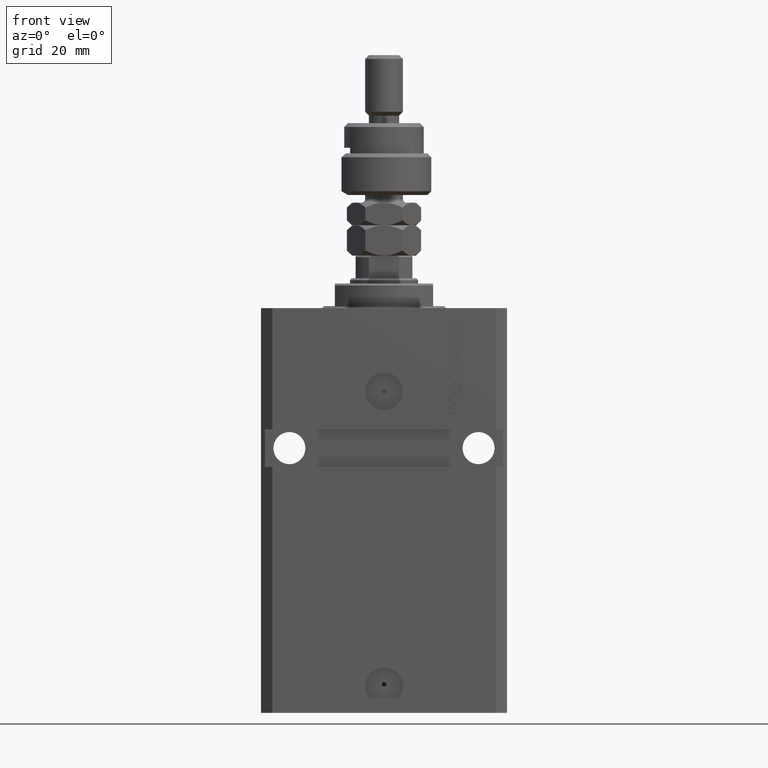
[diagram: clean part render]
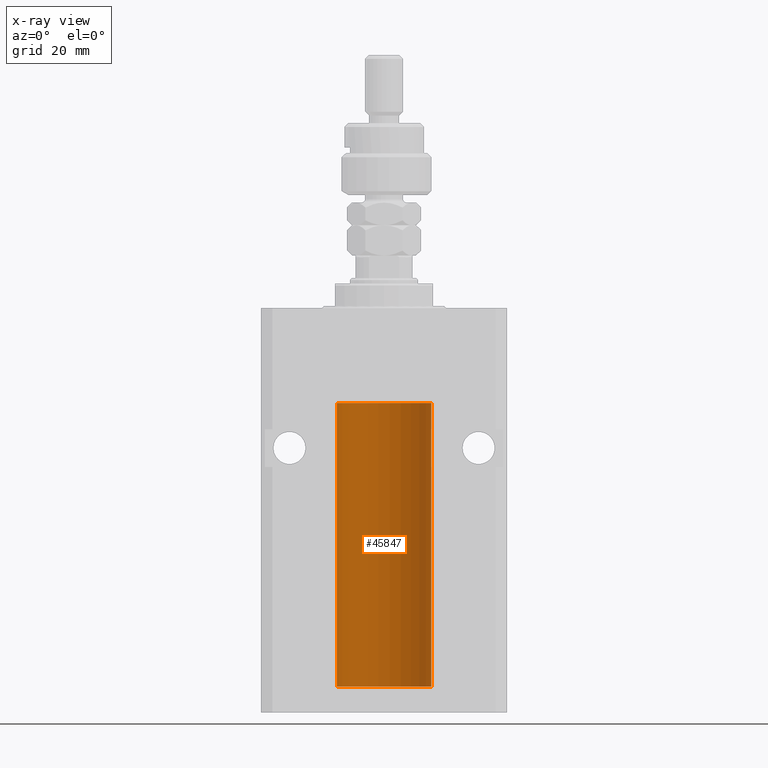
[diagram: x-ray — body ghosted, one internal face saturated and labeled with its STEP entity id]
A machine part, front view, then the same camera in x-ray: the body is ghosted and one INTERNAL B-rep face — a face not visible from any outside direction — is saturated and labeled: STEP entity #45847.
In plain terms, the highlighted cylindrical surface (partial cylindrical patch) has radius 12.5 mm, axis along (0, 0, 1).
Its self-contained STEP definition (entity closure, byte-faithful):
#434 = DIRECTION ( 'NONE',  ( 1.000000000000000000, 0.000000000000000000, 0.000000000000000000 ) ) ;
#1118 = ORIENTED_EDGE ( 'NONE', *, *, #26447, .F. ) ;
#1805 = AXIS2_PLACEMENT_3D ( 'NONE', #35546, #19614, #434 ) ;
#1975 = CARTESIAN_POINT ( 'NONE',  ( -12.49631005746706514, 0.3253680783018457756, -95.55856740465388555 ) ) ;
#5643 = ORIENTED_EDGE ( 'NONE', *, *, #33648, .T. ) ;
#5869 = ORIENTED_EDGE ( 'NONE', *, *, #18423, .T. ) ;
#6872 = CARTESIAN_POINT ( 'NONE',  ( -12.50000000000000000, 1.530808498934191521E-15, -100.0999999999999943 ) ) ;
#9567 = CARTESIAN_POINT ( 'NONE',  ( -12.48520330846397997, 0.6088355886774070580, -95.16325431852561678 ) ) ;
#10652 = DIRECTION ( 'NONE',  ( -0.000000000000000000, -0.000000000000000000, 1.000000000000000000 ) ) ;
#12437 = AXIS2_PLACEMENT_3D ( 'NONE', #18533, #33969, #49375 ) ;
#12952 = DIRECTION ( 'NONE',  ( -0.000000000000000000, -0.000000000000000000, 1.000000000000000000 ) ) ;
#13356 = CARTESIAN_POINT ( 'NONE',  ( -12.49422197749723829, 0.3843754434364257122, -94.50047099568094211 ) ) ;
#13375 = EDGE_CURVE ( 'NONE', #41490, #40287, #16167, .T. ) ;
#14022 = CARTESIAN_POINT ( 'NONE',  ( -12.50000000000000000, 1.530808498934191521E-15, -25.10000000000000142 ) ) ;
#14104 = CARTESIAN_POINT ( 'NONE',  ( -12.50000000000000000, 0.08260426088727994276, -94.37499999999998579 ) ) ;
#14444 = CARTESIAN_POINT ( 'NONE',  ( 12.50000000000000000, 0.000000000000000000, -100.0999999999999943 ) ) ;
#14724 = EDGE_LOOP ( 'NONE', ( #32597, #50014, #5643, #40726, #1118, #5869 ) ) ;
#15525 = CIRCLE ( 'NONE', #1805, 12.50000000000000000 ) ;
#15996 = CARTESIAN_POINT ( 'NONE',  ( 12.50000000000000000, 0.000000000000000000, -100.0999999999999943 ) ) ;
#16121 = CARTESIAN_POINT ( 'NONE',  ( 12.50000000000000000, 0.000000000000000000, -25.10000000000000142 ) ) ;
#16167 = LINE ( 'NONE', #28040, #23604 ) ;
#17378 = CARTESIAN_POINT ( 'NONE',  ( -12.49999999999999112, 0.1631761135151224562, -95.62499999999980105 ) ) ;
#18195 = VERTEX_POINT ( 'NONE', #16121 ) ;
#18423 = EDGE_CURVE ( 'NONE', #49492, #40287, #27269, .T. ) ;
#18533 = CARTESIAN_POINT ( 'NONE',  ( 0.000000000000000000, 0.000000000000000000, -25.10000000000000142 ) ) ;
#19614 = DIRECTION ( 'NONE',  ( 0.000000000000000000, 0.000000000000000000, 1.000000000000000000 ) ) ;
#21987 = VERTEX_POINT ( 'NONE', #15996 ) ;
#23604 = VECTOR ( 'NONE', #43708, 1000.000000000000000 ) ;
#24966 = CARTESIAN_POINT ( 'NONE',  ( -12.48809959379011403, 0.5462151254764922026, -95.31461370481613926 ) ) ;
#25038 = CARTESIAN_POINT ( 'NONE',  ( 0.000000000000000000, 0.000000000000000000, -100.0999999999999943 ) ) ;
#26447 = EDGE_CURVE ( 'NONE', #49492, #40230, #46802, .T. ) ;
#27269 = B_SPLINE_CURVE_WITH_KNOTS ( 'NONE', 3,
 ( #29007, #14104, #44932, #32571, #13356, #28759, #36595, #44187, #9567, #24966, #40390, #1975, #17378, #32817 ),
 .UNSPECIFIED., .F., .F.,
 ( 4, 2, 2, 2, 2, 2, 4 ),
 ( 3.486178718436696769E-18, 0.0002442924852390829216, 0.0004885849704781623738, 0.0009771699409563507684, 0.001221462426195465403, 0.001465754911434580254, 0.001954339881912780900 ),
 .UNSPECIFIED. ) ;
#28040 = CARTESIAN_POINT ( 'NONE',  ( -12.50000000000000000, 1.530808498934191521E-15, -100.0999999999999943 ) ) ;
#28759 = CARTESIAN_POINT ( 'NONE',  ( -12.48810268015257741, 0.5573155909661239304, -94.67347410093871929 ) ) ;
#29007 = CARTESIAN_POINT ( 'NONE',  ( -12.50000000000000000, -1.522152011595579853E-14, -94.37500000000000000 ) ) ;
#30421 = VECTOR ( 'NONE', #42749, 1000.000000000000000 ) ;
#32571 = CARTESIAN_POINT ( 'NONE',  ( -12.49625855304194033, 0.3150454781037993479, -94.45402800297488000 ) ) ;
#32597 = ORIENTED_EDGE ( 'NONE', *, *, #13375, .F. ) ;
#32817 = CARTESIAN_POINT ( 'NONE',  ( -12.50000000000017941, 3.883381774819353300E-13, -95.62500000000359535 ) ) ;
#33648 = EDGE_CURVE ( 'NONE', #21987, #18195, #49068, .T. ) ;
#33969 = DIRECTION ( 'NONE',  ( 0.000000000000000000, 0.000000000000000000, 1.000000000000000000 ) ) ;
#35546 = CARTESIAN_POINT ( 'NONE',  ( 0.000000000000000000, 0.000000000000000000, -100.0999999999999943 ) ) ;
#36538 = EDGE_CURVE ( 'NONE', #21987, #41490, #15525, .T. ) ;
#36595 = CARTESIAN_POINT ( 'NONE',  ( -12.48436813453758631, 0.6249418250771134886, -94.83668996798924411 ) ) ;
#36723 = AXIS2_PLACEMENT_3D ( 'NONE', #25038, #12952, #40468 ) ;
#36898 = CARTESIAN_POINT ( 'NONE',  ( -12.50000000000000000, -1.522152011595579853E-14, -94.37500000000000000 ) ) ;
#39587 = EDGE_CURVE ( 'NONE', #18195, #40230, #47150, .T. ) ;
#39975 = FACE_OUTER_BOUND ( 'NONE', #14724, .T. ) ;
#40230 = VERTEX_POINT ( 'NONE', #14022 ) ;
#40287 = VERTEX_POINT ( 'NONE', #46107 ) ;
#40390 = CARTESIAN_POINT ( 'NONE',  ( -12.49011732893843529, 0.5003763274120199833, -95.38348111289285214 ) ) ;
#40468 = DIRECTION ( 'NONE',  ( 1.000000000000000000, 0.000000000000000000, 0.000000000000000000 ) ) ;
#40726 = ORIENTED_EDGE ( 'NONE', *, *, #39587, .T. ) ;
#41052 = VECTOR ( 'NONE', #10652, 1000.000000000000000 ) ;
#41490 = VERTEX_POINT ( 'NONE', #6872 ) ;
#42749 = DIRECTION ( 'NONE',  ( -0.000000000000000000, -0.000000000000000000, 1.000000000000000000 ) ) ;
#43708 = DIRECTION ( 'NONE',  ( -0.000000000000000000, -0.000000000000000000, 1.000000000000000000 ) ) ;
#44187 = CARTESIAN_POINT ( 'NONE',  ( -12.48436376893640620, 0.6250290278979871994, -95.08132082824478459 ) ) ;
#44265 = CYLINDRICAL_SURFACE ( 'NONE', #36723, 12.50000000000000000 ) ;
#44932 = CARTESIAN_POINT ( 'NONE',  ( -12.49915784441387068, 0.1636601911727894876, -94.39126818989429069 ) ) ;
#45847 = ADVANCED_FACE ( 'NONE', ( #39975 ), #44265, .F. ) ;
#46107 = CARTESIAN_POINT ( 'NONE',  ( -12.50000000000017941, 3.883381774819353300E-13, -95.62500000000359535 ) ) ;
#46551 = CARTESIAN_POINT ( 'NONE',  ( -12.50000000000000000, 1.530808498934191521E-15, -100.0999999999999943 ) ) ;
#46802 = LINE ( 'NONE', #46551, #30421 ) ;
#47150 = CIRCLE ( 'NONE', #12437, 12.50000000000000000 ) ;
#49068 = LINE ( 'NONE', #14444, #41052 ) ;
#49375 = DIRECTION ( 'NONE',  ( 1.000000000000000000, 0.000000000000000000, 0.000000000000000000 ) ) ;
#49492 = VERTEX_POINT ( 'NONE', #36898 ) ;
#50014 = ORIENTED_EDGE ( 'NONE', *, *, #36538, .F. ) ;